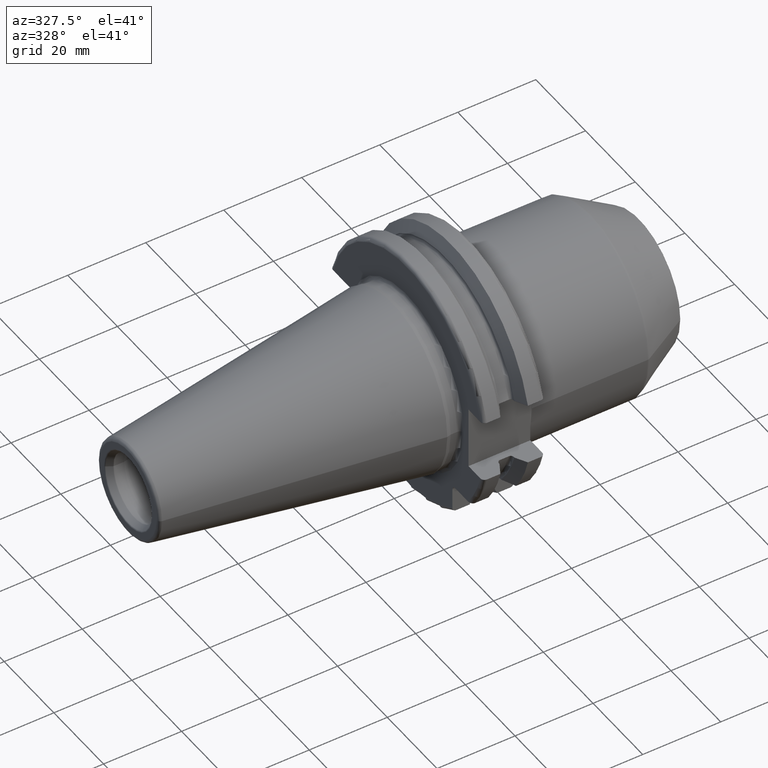
[diagram: clean part render]
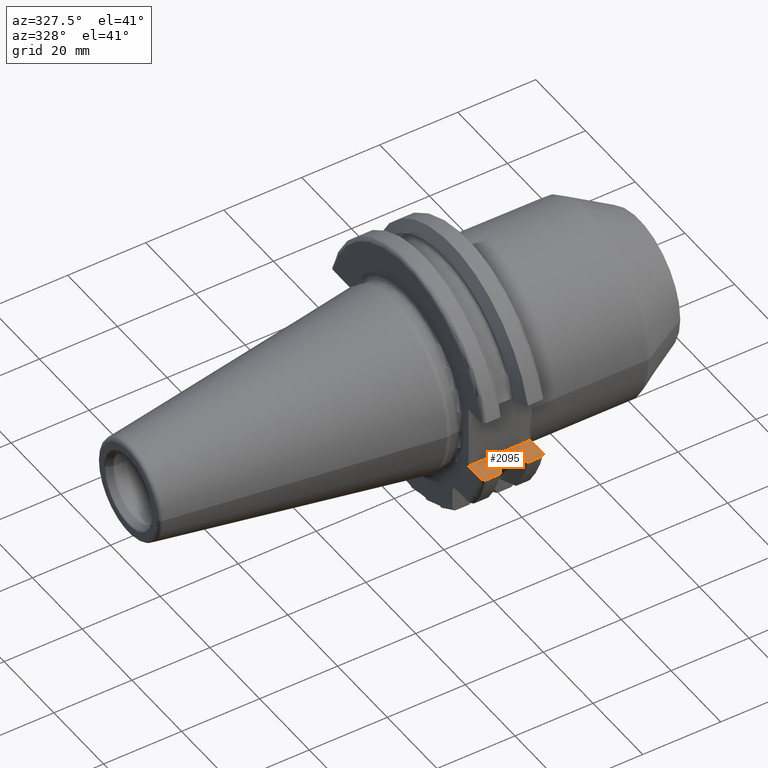
[diagram: same view with one face highlighted and labeled with its STEP entity id]
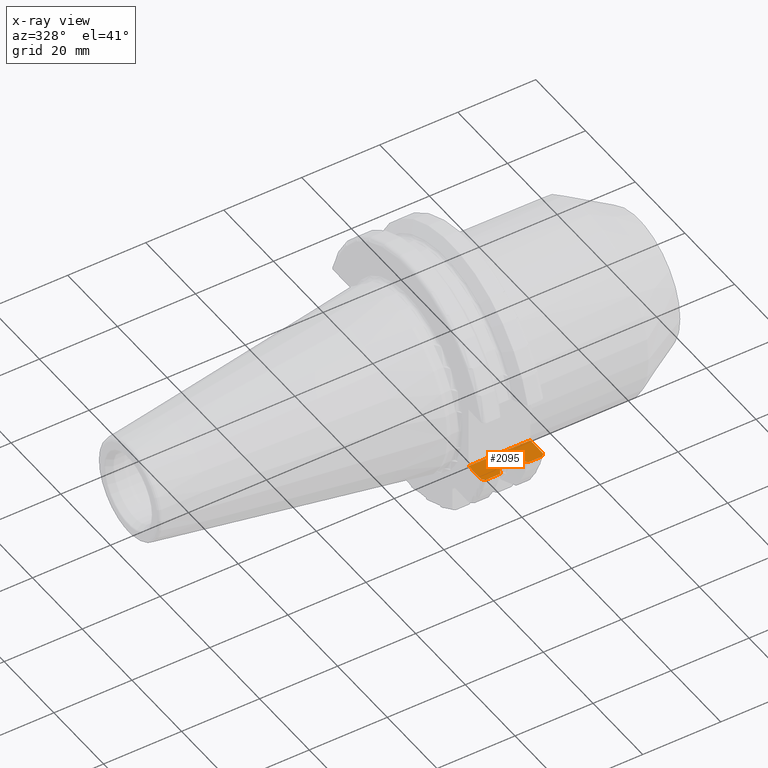
[diagram: x-ray of the same camera — body ghosted, the highlighted face saturated]
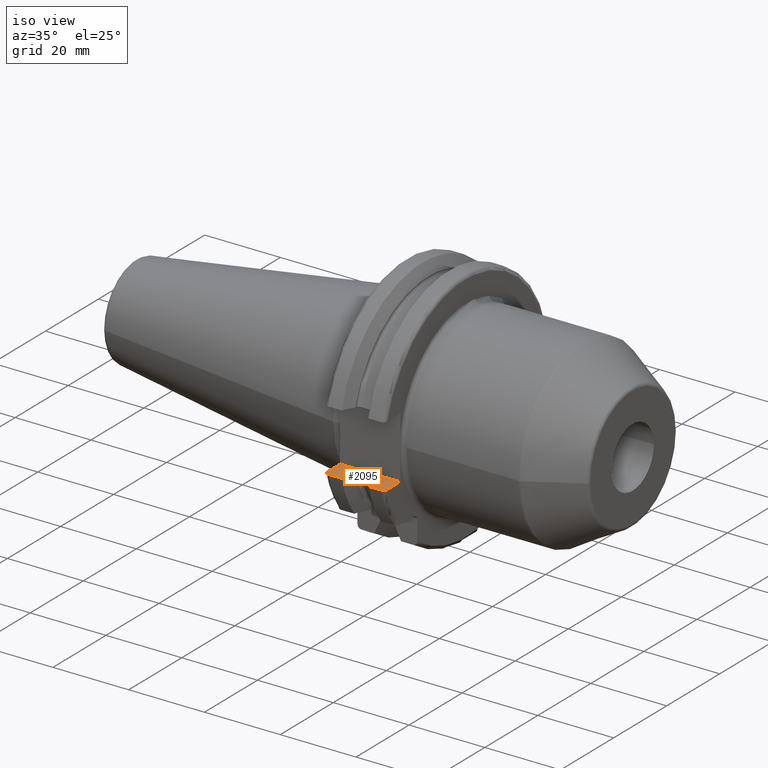
[diagram: same view with one face highlighted and labeled with its STEP entity id]
A machine part, auxiliary view. The second image highlights one B-rep face of the part: STEP entity #2095.
The next image is the same camera in x-ray: the body ghosted, the highlighted face saturated — about 0% of this face is hidden behind the body in this view.
A second angle (iso view) of the same face is appended — the face is thin or edge-on in the first view.
In plain terms, the highlighted planar face has unit normal (0, 0, -1).
Its self-contained STEP definition (entity closure, byte-faithful):
#259=DIRECTION('',(0.E0,1.E0,0.E0));
#260=VECTOR('',#259,4.826950757280E0);
#261=CARTESIAN_POINT('',(1.905E1,-2.967695075728E1,-8.1E0));
#262=LINE('',#261,#260);
#311=DIRECTION('',(-1.E0,0.E0,0.E0));
#312=VECTOR('',#311,1.585E1);
#313=CARTESIAN_POINT('',(1.905E1,-2.485E1,-8.1E0));
#314=LINE('',#313,#312);
#341=DIRECTION('',(0.E0,1.E0,0.E0));
#342=VECTOR('',#341,2.214507044446E-1);
#343=CARTESIAN_POINT('',(9.2625E0,-2.780681820245E1,-8.1E0));
#344=LINE('',#343,#342);
#447=DIRECTION('',(0.E0,1.E0,0.E0));
#448=VECTOR('',#447,2.214507044446E-1);
#449=CARTESIAN_POINT('',(1.30875E1,-2.780681820245E1,-8.1E0));
#450=LINE('',#449,#448);
#597=DIRECTION('',(0.E0,1.E0,0.E0));
#598=VECTOR('',#597,4.826950757280E0);
#599=CARTESIAN_POINT('',(3.2E0,-2.967695075728E1,-8.1E0));
#600=LINE('',#599,#598);
#651=CARTESIAN_POINT('',(1.905E1,-2.967695075728E1,-8.1E0));
#652=CARTESIAN_POINT('',(1.905E1,-2.975534544469E1,-8.1E0));
#653=CARTESIAN_POINT('',(1.903327439626E1,-2.990764711142E1,-8.1E0));
#654=CARTESIAN_POINT('',(1.895996891946E1,-3.012703601742E1,-8.1E0));
#655=CARTESIAN_POINT('',(1.884140031799E1,-3.032417656220E1,-8.1E0));
#656=CARTESIAN_POINT('',(1.868299781019E1,-3.048994814949E1,-8.1E0));
#657=CARTESIAN_POINT('',(1.849140267654E1,-3.061604720054E1,-8.1E0));
#658=CARTESIAN_POINT('',(1.827601722220E1,-3.069451682863E1,-8.1E0));
#659=CARTESIAN_POINT('',(1.812684136073E1,-3.071231684927E1,-8.1E0));
#660=CARTESIAN_POINT('',(1.805E1,-3.071231684927E1,-8.1E0));
#709=DIRECTION('',(1.E0,0.E0,0.E0));
#710=VECTOR('',#709,3.445946479578E0);
#711=CARTESIAN_POINT('',(4.2E0,-3.071231684927E1,-8.1E0));
#712=LINE('',#711,#710);
#722=DIRECTION('',(1.E0,0.E0,0.E0));
#723=VECTOR('',#722,3.345946479578E0);
#724=CARTESIAN_POINT('',(1.470405352042E1,-3.071231684927E1,-8.1E0));
#725=LINE('',#724,#723);
#767=CARTESIAN_POINT('',(4.2E0,-3.071231684927E1,-8.1E0));
#768=CARTESIAN_POINT('',(4.122975496592E0,-3.071231684927E1,-8.1E0));
#769=CARTESIAN_POINT('',(3.973434275890E0,-3.069445502310E1,-8.1E0));
#770=CARTESIAN_POINT('',(3.757148362145E0,-3.061539366421E1,-8.1E0));
#771=CARTESIAN_POINT('',(3.565367695912E0,-3.048860164744E1,-8.1E0));
#772=CARTESIAN_POINT('',(3.407348762296E0,-3.032249788839E1,-8.1E0));
#773=CARTESIAN_POINT('',(3.289450816159E0,-3.012561805664E1,-8.1E0));
#774=CARTESIAN_POINT('',(3.216670609282E0,-2.990711670215E1,-8.1E0));
#775=CARTESIAN_POINT('',(3.2E0,-2.975517161523E1,-8.1E0));
#776=CARTESIAN_POINT('',(3.2E0,-2.967695075728E1,-8.1E0));
#808=CARTESIAN_POINT('',(7.645946479578E0,-3.071231684927E1,-8.1E0));
#809=CARTESIAN_POINT('',(7.831754864835E0,-3.037948258059E1,-8.1E0));
#810=CARTESIAN_POINT('',(8.199252814970E0,-2.972048825911E1,-8.1E0));
#811=CARTESIAN_POINT('',(8.738047920141E0,-2.875212438619E1,-8.1E0));
#812=CARTESIAN_POINT('',(9.089058006747E0,-2.811971443922E1,-8.1E0));
#813=CARTESIAN_POINT('',(9.2625E0,-2.780681820245E1,-8.1E0));
#841=CARTESIAN_POINT('',(1.470405352042E1,-3.071231684927E1,-8.1E0));
#842=CARTESIAN_POINT('',(1.451824513517E1,-3.037948258059E1,-8.1E0));
#843=CARTESIAN_POINT('',(1.415074718503E1,-2.972048825911E1,-8.1E0));
#844=CARTESIAN_POINT('',(1.361195207986E1,-2.875212438619E1,-8.1E0));
#845=CARTESIAN_POINT('',(1.326094199325E1,-2.811971443922E1,-8.1E0));
#846=CARTESIAN_POINT('',(1.30875E1,-2.780681820245E1,-8.1E0));
#887=CARTESIAN_POINT('',(1.30875E1,-2.758536749801E1,-8.1E0));
#888=CARTESIAN_POINT('',(1.30875E1,-2.752620726606E1,-8.1E0));
#889=CARTESIAN_POINT('',(1.307494192723E1,-2.741130240577E1,-8.1E0));
#890=CARTESIAN_POINT('',(1.302002181328E1,-2.724583699942E1,-8.1E0));
#891=CARTESIAN_POINT('',(1.293153238569E1,-2.709731578992E1,-8.1E0));
#892=CARTESIAN_POINT('',(1.281313013739E1,-2.697197536487E1,-8.1E0));
#893=CARTESIAN_POINT('',(1.266986820733E1,-2.687637473050E1,-8.1E0));
#894=CARTESIAN_POINT('',(1.250775986797E1,-2.681639930389E1,-8.1E0));
#895=CARTESIAN_POINT('',(1.239542540414E1,-2.680279836137E1,-8.1E0));
#896=CARTESIAN_POINT('',(1.23375E1,-2.680279836137E1,-8.1E0));
#927=DIRECTION('',(1.E0,0.E0,0.E0));
#928=VECTOR('',#927,2.325E0);
#929=CARTESIAN_POINT('',(1.00125E1,-2.680279836137E1,-8.1E0));
#930=LINE('',#929,#928);
#967=CARTESIAN_POINT('',(1.00125E1,-2.680279836137E1,-8.1E0));
#968=CARTESIAN_POINT('',(9.954414492742E0,-2.680279836137E1,-8.1E0));
#969=CARTESIAN_POINT('',(9.841762349365E0,-2.681646236359E1,-8.1E0));
#970=CARTESIAN_POINT('',(9.678987453991E0,-2.687689458627E1,-8.1E0));
#971=CARTESIAN_POINT('',(9.535463039595E0,-2.697313680177E1,-8.1E0));
#972=CARTESIAN_POINT('',(9.417373639506E0,-2.709880409232E1,-8.1E0));
#973=CARTESIAN_POINT('',(9.329478791834E0,-2.724706101014E1,-8.1E0));
#974=CARTESIAN_POINT('',(9.274990825916E0,-2.741184090016E1,-8.1E0));
#975=CARTESIAN_POINT('',(9.2625E0,-2.752639097673E1,-8.1E0));
#976=CARTESIAN_POINT('',(9.2625E0,-2.758536749801E1,-8.1E0));
#1459=CARTESIAN_POINT('',(9.2625E0,-2.780681820245E1,-8.1E0));
#1460=CARTESIAN_POINT('',(9.2625E0,-2.758536749801E1,-8.1E0));
#1461=VERTEX_POINT('',#1459);
#1462=VERTEX_POINT('',#1460);
#1489=CARTESIAN_POINT('',(1.30875E1,-2.780681820245E1,-8.1E0));
#1490=CARTESIAN_POINT('',(1.30875E1,-2.758536749801E1,-8.1E0));
#1491=VERTEX_POINT('',#1489);
#1492=VERTEX_POINT('',#1490);
#1508=VERTEX_POINT('',#967);
#1511=CARTESIAN_POINT('',(1.23375E1,-2.680279836137E1,-8.1E0));
#1512=VERTEX_POINT('',#1511);
#1514=VERTEX_POINT('',#841);
#1516=VERTEX_POINT('',#808);
#1517=CARTESIAN_POINT('',(1.905E1,-2.967695075728E1,-8.1E0));
#1518=CARTESIAN_POINT('',(1.905E1,-2.485E1,-8.1E0));
#1519=VERTEX_POINT('',#1517);
#1520=VERTEX_POINT('',#1518);
#1545=CARTESIAN_POINT('',(3.2E0,-2.967695075728E1,-8.1E0));
#1546=CARTESIAN_POINT('',(3.2E0,-2.485E1,-8.1E0));
#1547=VERTEX_POINT('',#1545);
#1548=VERTEX_POINT('',#1546);
#1557=CARTESIAN_POINT('',(4.2E0,-3.071231684927E1,-8.1E0));
#1558=VERTEX_POINT('',#1557);
#1559=CARTESIAN_POINT('',(1.805E1,-3.071231684927E1,-8.1E0));
#1560=VERTEX_POINT('',#1559);
#2062=CARTESIAN_POINT('',(1.905E1,-3.485E1,-8.1E0));
#2063=DIRECTION('',(0.E0,0.E0,-1.E0));
#2064=DIRECTION('',(0.E0,1.E0,0.E0));
#2065=AXIS2_PLACEMENT_3D('',#2062,#2063,#2064);
#2066=PLANE('',#2065);
#2068=ORIENTED_EDGE('',*,*,#2067,.F.);
#2070=ORIENTED_EDGE('',*,*,#2069,.F.);
#2072=ORIENTED_EDGE('',*,*,#2071,.F.);
#2074=ORIENTED_EDGE('',*,*,#2073,.T.);
#2076=ORIENTED_EDGE('',*,*,#2075,.T.);
#2077=ORIENTED_EDGE('',*,*,#2053,.F.);
#2078=ORIENTED_EDGE('',*,*,#2005,.F.);
#2080=ORIENTED_EDGE('',*,*,#2079,.T.);
#2082=ORIENTED_EDGE('',*,*,#2081,.F.);
#2084=ORIENTED_EDGE('',*,*,#2083,.T.);
#2086=ORIENTED_EDGE('',*,*,#2085,.T.);
#2088=ORIENTED_EDGE('',*,*,#2087,.T.);
#2090=ORIENTED_EDGE('',*,*,#2089,.F.);
#2092=ORIENTED_EDGE('',*,*,#2091,.T.);
#2093=EDGE_LOOP('',(#2068,#2070,#2072,#2074,#2076,#2077,#2078,#2080,#2082,#2084,
#2086,#2088,#2090,#2092));
#2094=FACE_OUTER_BOUND('',#2093,.F.);
#2095=ADVANCED_FACE('',(#2094),#2066,.F.);
#661=B_SPLINE_CURVE_WITH_KNOTS('',3,(#651,#652,#653,#654,#655,#656,#657,#658,
#659,#660),.UNSPECIFIED.,.F.,.F.,(4,1,1,1,1,1,1,4),(0.E0,1.428571428571E-1,
2.857142857143E-1,4.285714285714E-1,5.714285714286E-1,7.142857142857E-1,
8.571428571429E-1,1.E0),.UNSPECIFIED.);
#777=B_SPLINE_CURVE_WITH_KNOTS('',3,(#767,#768,#769,#770,#771,#772,#773,#774,
#775,#776),.UNSPECIFIED.,.F.,.F.,(4,1,1,1,1,1,1,4),(0.E0,1.428571428571E-1,
2.857142857143E-1,4.285714285714E-1,5.714285714286E-1,7.142857142857E-1,
8.571428571429E-1,1.E0),.UNSPECIFIED.);
#814=B_SPLINE_CURVE_WITH_KNOTS('',3,(#808,#809,#810,#811,#812,#813),
.UNSPECIFIED.,.F.,.F.,(4,1,1,4),(0.E0,3.333333333333E-1,6.666666666667E-1,1.E0),
.UNSPECIFIED.);
#847=B_SPLINE_CURVE_WITH_KNOTS('',3,(#841,#842,#843,#844,#845,#846),
.UNSPECIFIED.,.F.,.F.,(4,1,1,4),(0.E0,3.333333333333E-1,6.666666666667E-1,1.E0),
.UNSPECIFIED.);
#897=B_SPLINE_CURVE_WITH_KNOTS('',3,(#887,#888,#889,#890,#891,#892,#893,#894,
#895,#896),.UNSPECIFIED.,.F.,.F.,(4,1,1,1,1,1,1,4),(0.E0,1.428571428571E-1,
2.857142857143E-1,4.285714285714E-1,5.714285714286E-1,7.142857142857E-1,
8.571428571429E-1,1.E0),.UNSPECIFIED.);
#977=B_SPLINE_CURVE_WITH_KNOTS('',3,(#967,#968,#969,#970,#971,#972,#973,#974,
#975,#976),.UNSPECIFIED.,.F.,.F.,(4,1,1,1,1,1,1,4),(0.E0,1.428571428571E-1,
2.857142857143E-1,4.285714285714E-1,5.714285714286E-1,7.142857142857E-1,
8.571428571429E-1,1.E0),.UNSPECIFIED.);
#2005=EDGE_CURVE('',#1519,#1520,#262,.T.);
#2053=EDGE_CURVE('',#1520,#1548,#314,.T.);
#2067=EDGE_CURVE('',#1461,#1462,#344,.T.);
#2069=EDGE_CURVE('',#1516,#1461,#814,.T.);
#2071=EDGE_CURVE('',#1558,#1516,#712,.T.);
#2073=EDGE_CURVE('',#1558,#1547,#777,.T.);
#2075=EDGE_CURVE('',#1547,#1548,#600,.T.);
#2079=EDGE_CURVE('',#1519,#1560,#661,.T.);
#2081=EDGE_CURVE('',#1514,#1560,#725,.T.);
#2083=EDGE_CURVE('',#1514,#1491,#847,.T.);
#2085=EDGE_CURVE('',#1491,#1492,#450,.T.);
#2087=EDGE_CURVE('',#1492,#1512,#897,.T.);
#2089=EDGE_CURVE('',#1508,#1512,#930,.T.);
#2091=EDGE_CURVE('',#1508,#1462,#977,.T.);